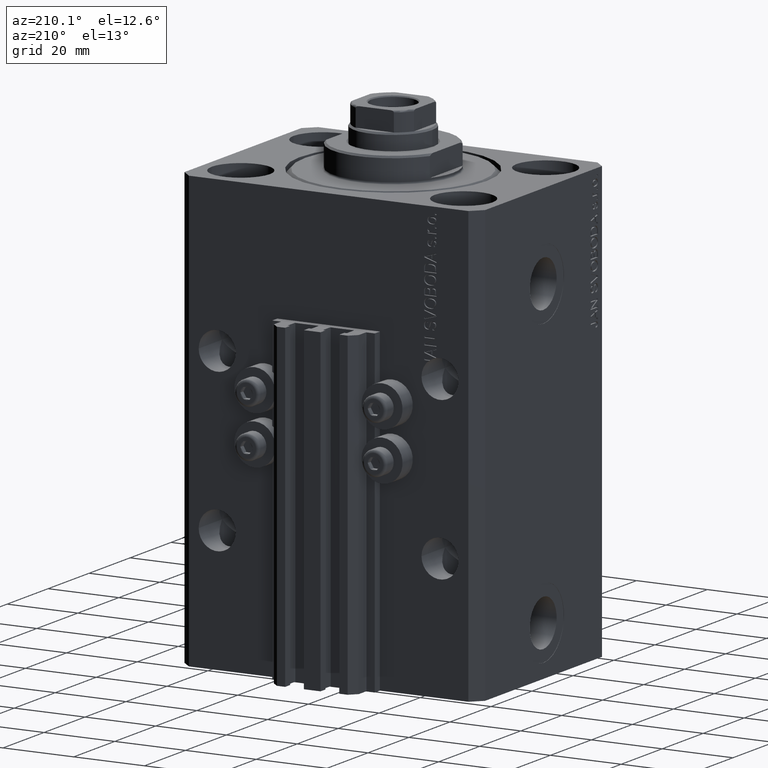
[diagram: clean part render]
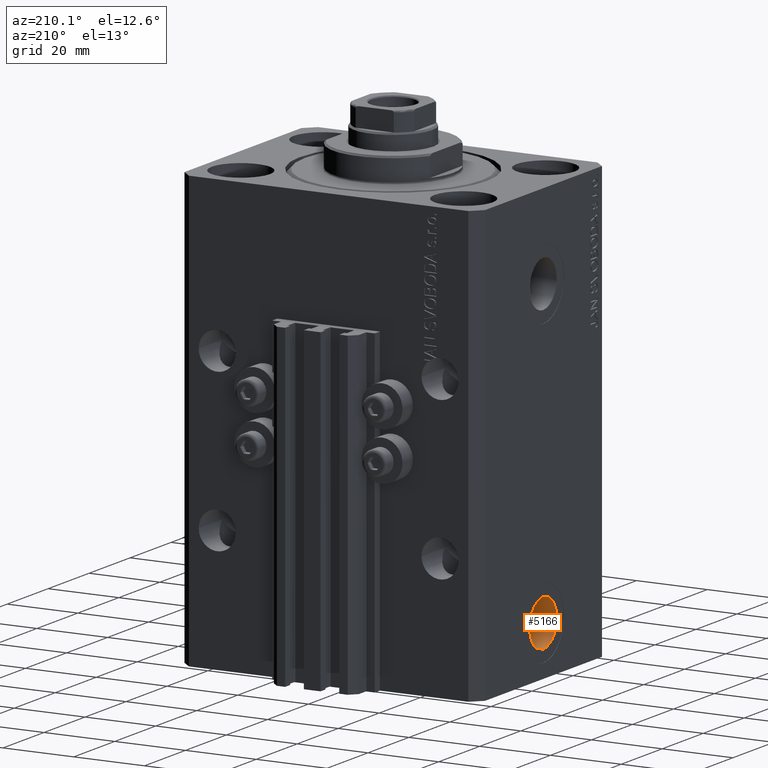
[diagram: same view with one face highlighted and labeled with its STEP entity id]
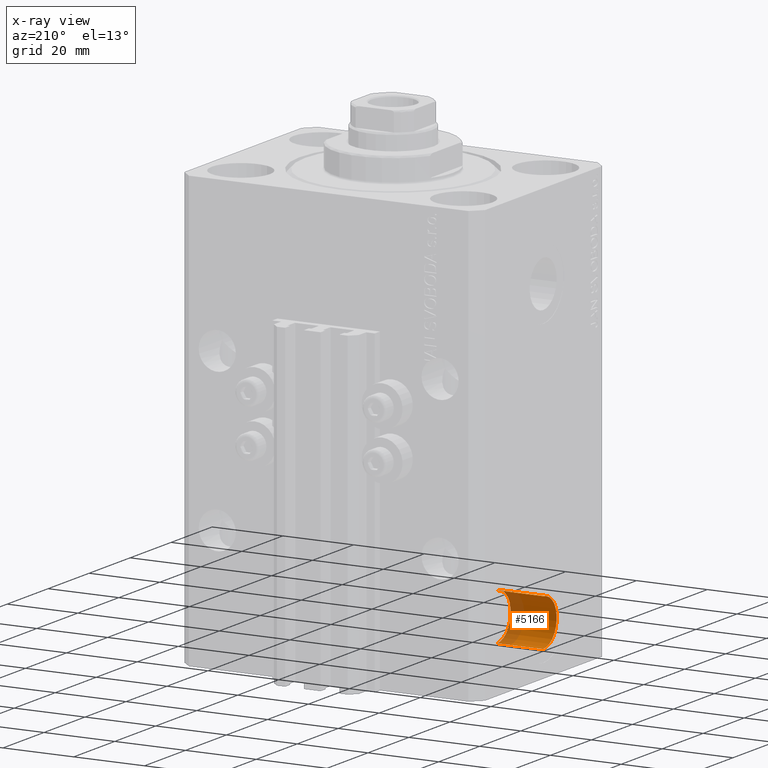
[diagram: x-ray of the same camera — body ghosted, the highlighted face saturated]
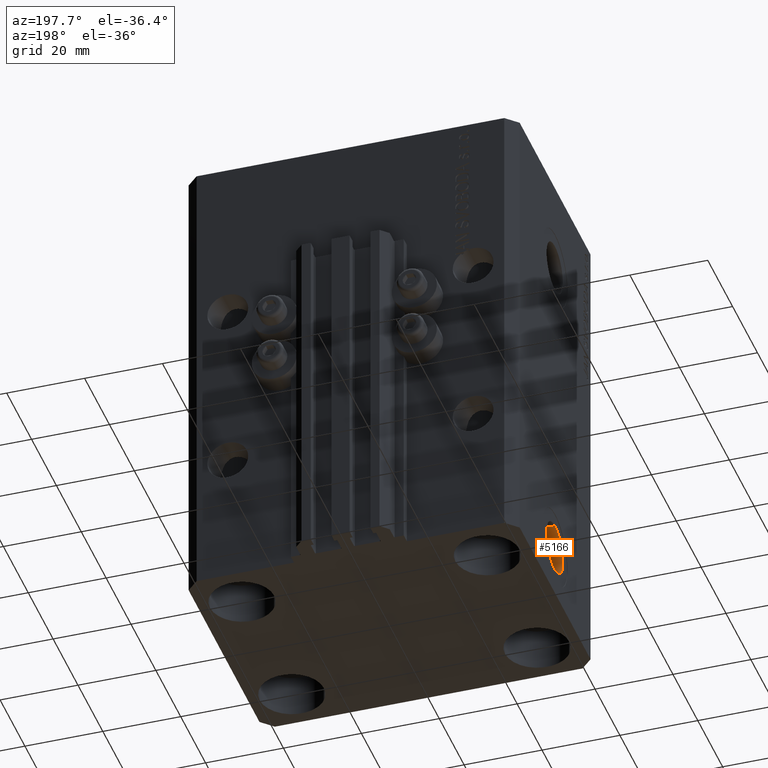
[diagram: same view with one face highlighted and labeled with its STEP entity id]
A machine part, auxiliary view. The second image highlights one B-rep face of the part: STEP entity #5166.
The next image is the same camera in x-ray: the body ghosted, the highlighted face saturated — about 29% of this face is hidden behind the body in this view.
A second angle (auxiliary view) of the same face is appended — the face is thin or edge-on in the first view.
In plain terms, the highlighted cylindrical surface (edge-blend (fillet) strip) has radius 6.58 mm, axis along (-1, -0, -0).
Its self-contained STEP definition (entity closure, byte-faithful):
#287 = VECTOR ( 'NONE', #10298, 1000.000000000000000 ) ;
#1532 = EDGE_CURVE ( 'NONE', #18873, #27876, #16566, .T. ) ;
#4145 = ORIENTED_EDGE ( 'NONE', *, *, #1532, .T. ) ;
#4526 = CARTESIAN_POINT ( 'NONE',  ( -29.40000000000000213, -1.334865011070615008E-14, -109.0000000000000000 ) ) ;
#5166 = ADVANCED_FACE ( 'NONE', ( #11823 ), #41501, .F. ) ;
#5360 = VERTEX_POINT ( 'NONE', #10117 ) ;
#5782 = DIRECTION ( 'NONE',  ( -1.000000000000000000, 0.000000000000000000, 0.000000000000000000 ) ) ;
#5869 = CARTESIAN_POINT ( 'NONE',  ( -29.40000000000000213, -1.254283251686719104E-14, -115.5799999999999983 ) ) ;
#10117 = CARTESIAN_POINT ( 'NONE',  ( -29.40000000000000213, -1.334865011070615008E-14, -102.4200000000000017 ) ) ;
#10298 = DIRECTION ( 'NONE',  ( -1.000000000000000000, -0.000000000000000000, -0.000000000000000000 ) ) ;
#10723 = EDGE_CURVE ( 'NONE', #5360, #25635, #26068, .T. ) ;
#11823 = FACE_OUTER_BOUND ( 'NONE', #29407, .T. ) ;
#13313 = CARTESIAN_POINT ( 'NONE',  ( -29.40000000000000213, -1.334865011070615008E-14, -109.0000000000000000 ) ) ;
#14468 = ORIENTED_EDGE ( 'NONE', *, *, #22898, .F. ) ;
#15744 = DIRECTION ( 'NONE',  ( -1.000000000000000000, 0.000000000000000000, 0.000000000000000000 ) ) ;
#16566 = LINE ( 'NONE', #5869, #23370 ) ;
#18873 = VERTEX_POINT ( 'NONE', #39357 ) ;
#19237 = AXIS2_PLACEMENT_3D ( 'NONE', #20118, #15744, #41776 ) ;
#19358 = DIRECTION ( 'NONE',  ( -1.000000000000000000, -0.000000000000000000, -0.000000000000000000 ) ) ;
#20118 = CARTESIAN_POINT ( 'NONE',  ( -42.39999999999999858, -1.334865011070615008E-14, -109.0000000000000000 ) ) ;
#22426 = CARTESIAN_POINT ( 'NONE',  ( -29.40000000000000213, -1.334865011070615008E-14, -102.4200000000000017 ) ) ;
#22898 = EDGE_CURVE ( 'NONE', #18873, #5360, #37395, .T. ) ;
#23370 = VECTOR ( 'NONE', #31647, 1000.000000000000000 ) ;
#24239 = CARTESIAN_POINT ( 'NONE',  ( -42.39999999999999858, -1.334865011070615008E-14, -102.4200000000000017 ) ) ;
#25635 = VERTEX_POINT ( 'NONE', #24239 ) ;
#26068 = LINE ( 'NONE', #22426, #287 ) ;
#27876 = VERTEX_POINT ( 'NONE', #46766 ) ;
#29407 = EDGE_LOOP ( 'NONE', ( #14468, #4145, #38426, #34539 ) ) ;
#31647 = DIRECTION ( 'NONE',  ( -1.000000000000000000, -0.000000000000000000, -0.000000000000000000 ) ) ;
#31678 = CIRCLE ( 'NONE', #19237, 6.580000000000002736 ) ;
#34539 = ORIENTED_EDGE ( 'NONE', *, *, #10723, .F. ) ;
#35445 = DIRECTION ( 'NONE',  ( 0.000000000000000000, 0.000000000000000000, 1.000000000000000000 ) ) ;
#37395 = CIRCLE ( 'NONE', #47523, 6.580000000000002736 ) ;
#38426 = ORIENTED_EDGE ( 'NONE', *, *, #40344, .T. ) ;
#39357 = CARTESIAN_POINT ( 'NONE',  ( -29.40000000000000213, -1.254283251686719104E-14, -115.5799999999999983 ) ) ;
#40344 = EDGE_CURVE ( 'NONE', #27876, #25635, #31678, .T. ) ;
#41357 = AXIS2_PLACEMENT_3D ( 'NONE', #4526, #19358, #47852 ) ;
#41501 = CYLINDRICAL_SURFACE ( 'NONE', #41357, 6.580000000000002736 ) ;
#41776 = DIRECTION ( 'NONE',  ( 0.000000000000000000, 0.000000000000000000, 1.000000000000000000 ) ) ;
#46766 = CARTESIAN_POINT ( 'NONE',  ( -42.39999999999999858, -1.254283251686719104E-14, -115.5799999999999983 ) ) ;
#47523 = AXIS2_PLACEMENT_3D ( 'NONE', #13313, #5782, #35445 ) ;
#47852 = DIRECTION ( 'NONE',  ( 0.000000000000000000, 0.000000000000000000, 1.000000000000000000 ) ) ;